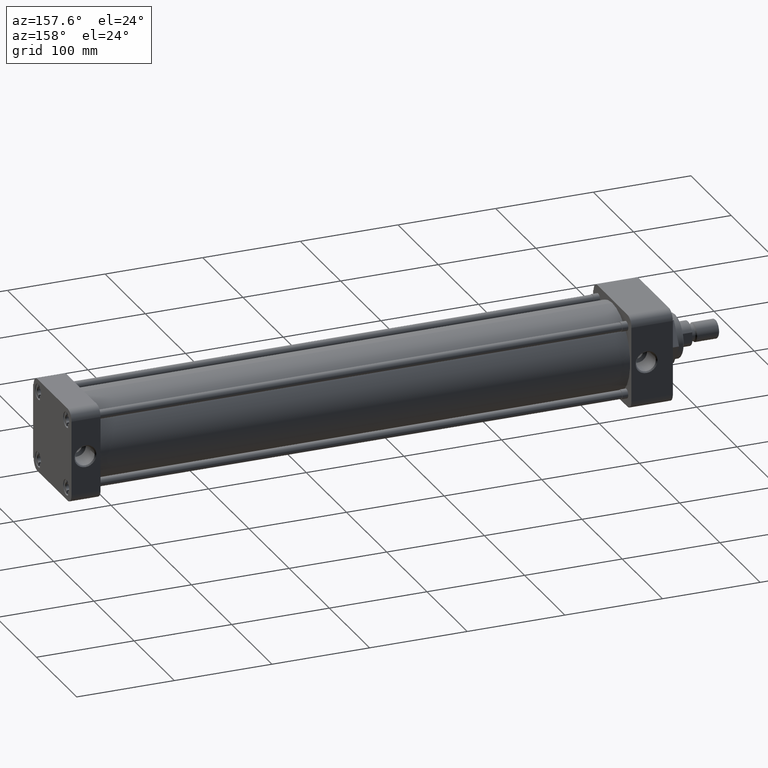
[diagram: clean part render]
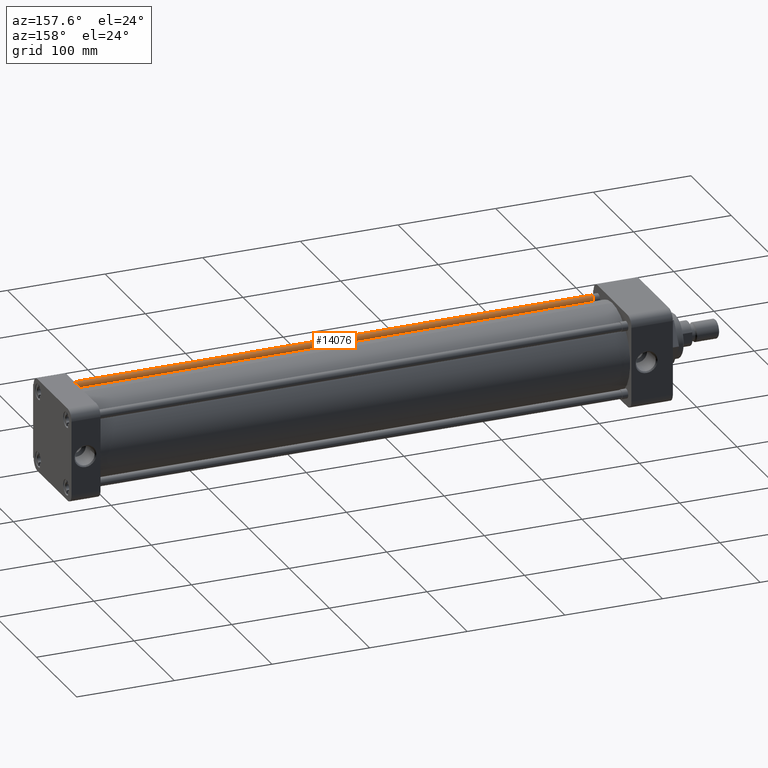
[diagram: same view with one face highlighted and labeled with its STEP entity id]
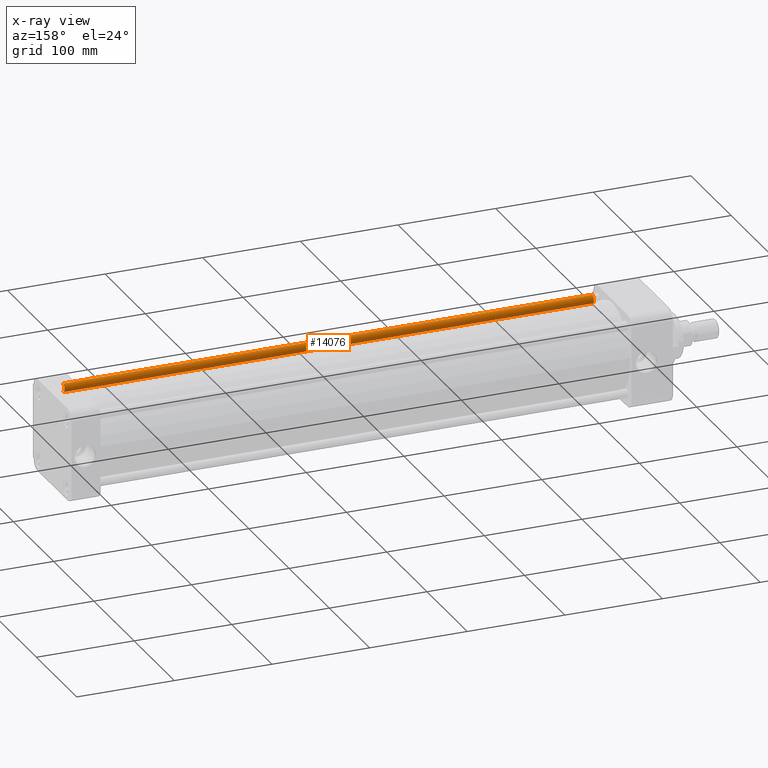
[diagram: x-ray of the same camera — body ghosted, the highlighted face saturated]
A machine part, auxiliary view. The second image highlights one B-rep face of the part: STEP entity #14076.
The next image is the same camera in x-ray: the body ghosted, the highlighted face saturated — about 0% of this face is hidden behind the body in this view.
In plain terms, the highlighted cylindrical surface (edge-blend (fillet) strip) has radius 4.318 mm, axis along (-1, 0, 0).
Its self-contained STEP definition (entity closure, byte-faithful):
#507 = CARTESIAN_POINT ( 'NONE',  ( 23.25600000000000000, -1.379000000000000000, 1.379000000000000000 ) ) ;
#1023 = ORIENTED_EDGE ( 'NONE', *, *, #2397, .F. ) ;
#1113 = CARTESIAN_POINT ( 'NONE',  ( 23.25600000000000000, -1.379000000000000000, 1.549000000000000200 ) ) ;
#1564 = AXIS2_PLACEMENT_3D ( 'NONE', #8625, #1839, #9748 ) ;
#1646 = DIRECTION ( 'NONE',  ( -1.000000000000000000, 0.0000000000000000000, -0.0000000000000000000 ) ) ;
#1839 = DIRECTION ( 'NONE',  ( -1.000000000000000000, 0.0000000000000000000, -0.0000000000000000000 ) ) ;
#1907 = LINE ( 'NONE', #14239, #7951 ) ;
#2397 = EDGE_CURVE ( 'NONE', #12554, #13242, #8601, .T. ) ;
#3281 = EDGE_CURVE ( 'NONE', #10627, #13242, #6405, .T. ) ;
#4104 = AXIS2_PLACEMENT_3D ( 'NONE', #4981, #12914, #6110 ) ;
#4981 = CARTESIAN_POINT ( 'NONE',  ( 1.913000000000002000, -1.379000000000000000, 1.379000000000000000 ) ) ;
#6110 = DIRECTION ( 'NONE',  ( 0.0000000000000000000, 0.0000000000000000000, -1.000000000000000000 ) ) ;
#6405 = CIRCLE ( 'NONE', #4104, 0.1699999999999999600 ) ;
#6451 = CIRCLE ( 'NONE', #1564, 0.1699999999999999600 ) ;
#6457 = VERTEX_POINT ( 'NONE', #8536 ) ;
#6523 = ORIENTED_EDGE ( 'NONE', *, *, #9367, .T. ) ;
#6569 = CARTESIAN_POINT ( 'NONE',  ( 1.913000000000002000, -1.379000000000000000, 1.209000000000000100 ) ) ;
#7103 = CARTESIAN_POINT ( 'NONE',  ( 1.913000000000002000, -1.379000000000000000, 1.549000000000000200 ) ) ;
#7342 = DIRECTION ( 'NONE',  ( 0.0000000000000000000, 0.0000000000000000000, -1.000000000000000000 ) ) ;
#7459 = DIRECTION ( 'NONE',  ( -1.000000000000000000, 0.0000000000000000000, -0.0000000000000000000 ) ) ;
#7890 = DIRECTION ( 'NONE',  ( -1.000000000000000000, 0.0000000000000000000, -0.0000000000000000000 ) ) ;
#7951 = VECTOR ( 'NONE', #7459, 39.37007874015748100 ) ;
#8420 = AXIS2_PLACEMENT_3D ( 'NONE', #507, #1646, #7342 ) ;
#8536 = CARTESIAN_POINT ( 'NONE',  ( 23.25600000000000000, -1.379000000000000000, 1.209000000000000100 ) ) ;
#8601 = LINE ( 'NONE', #1113, #11593 ) ;
#8625 = CARTESIAN_POINT ( 'NONE',  ( 23.25600000000000000, -1.379000000000000000, 1.379000000000000000 ) ) ;
#9367 = EDGE_CURVE ( 'NONE', #12554, #6457, #6451, .T. ) ;
#9735 = EDGE_LOOP ( 'NONE', ( #1023, #6523, #13169, #10400 ) ) ;
#9748 = DIRECTION ( 'NONE',  ( 0.0000000000000000000, 0.0000000000000000000, -1.000000000000000000 ) ) ;
#9989 = CYLINDRICAL_SURFACE ( 'NONE', #8420, 0.1699999999999999600 ) ;
#10291 = CARTESIAN_POINT ( 'NONE',  ( 23.25600000000000000, -1.379000000000000000, 1.549000000000000200 ) ) ;
#10400 = ORIENTED_EDGE ( 'NONE', *, *, #3281, .T. ) ;
#10627 = VERTEX_POINT ( 'NONE', #6569 ) ;
#11593 = VECTOR ( 'NONE', #7890, 39.37007874015748100 ) ;
#12554 = VERTEX_POINT ( 'NONE', #10291 ) ;
#12914 = DIRECTION ( 'NONE',  ( 1.000000000000000000, -0.0000000000000000000, 0.0000000000000000000 ) ) ;
#13169 = ORIENTED_EDGE ( 'NONE', *, *, #13612, .T. ) ;
#13221 = FACE_OUTER_BOUND ( 'NONE', #9735, .T. ) ;
#13242 = VERTEX_POINT ( 'NONE', #7103 ) ;
#13612 = EDGE_CURVE ( 'NONE', #6457, #10627, #1907, .T. ) ;
#14076 = ADVANCED_FACE ( 'NONE', ( #13221 ), #9989, .T. ) ;
#14239 = CARTESIAN_POINT ( 'NONE',  ( 23.25600000000000000, -1.379000000000000000, 1.209000000000000100 ) ) ;